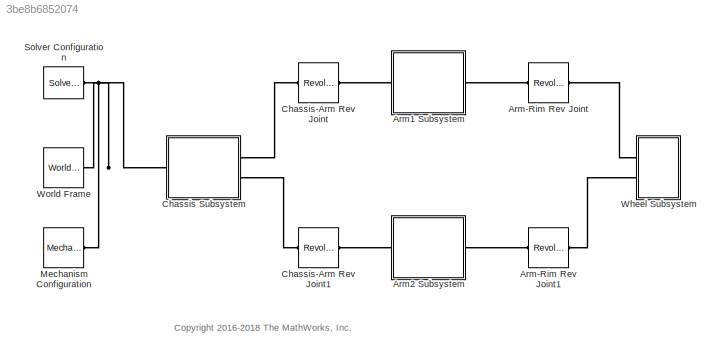
MODEL slx_3be8b6852074
KIND model
CONFIG AbsTol = auto
CONFIG EnableMultiTasking = on
CONFIG FixedStep = auto
CONFIG MaxStep = auto
CONFIG MinStep = auto
CONFIG PreLoadFcn = susp_sys_params
CONFIG RelTol = 1e-3
CONFIG SampleTimeConstraint = Unconstrained
CONFIG Solver = ode45
CONFIG SolverName = ode45
CONFIG StartTime = 0.0
CONFIG StopTime = 10.0
BLOCK [Reference] Arm-Rim Rev Joint  REF=sm_lib/Joints/Revolute Joint
  Ports = [0, 0, 0, 0, 0, 1, 1]
  SourceBlock = sm_lib/Joints/Revolute Joint
  SourceProductBaseCode = MS
  SourceProductName = Simscape Multibody
  SourceType = Revolute Joint
BLOCK [Reference] Arm-Rim Rev Joint1  REF=sm_lib/Joints/Revolute Joint
  Ports = [0, 0, 0, 0, 0, 1, 1]
  SourceBlock = sm_lib/Joints/Revolute Joint
  SourceProductBaseCode = MS
  SourceProductName = Simscape Multibody
  SourceType = Revolute Joint
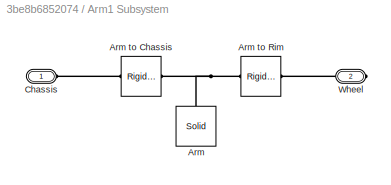
BLOCK [SubSystem] Arm1 Subsystem
  Ports = [0, 0, 0, 0, 0, 1, 1]
  RequestExecContextInheritance = off
  Variant = off
BLOCK [Reference] Arm1 Subsystem/Arm  REF=sm_lib/Body Elements/Solid
  Ports = [0, 0, 0, 0, 0, 0, 1]
  SourceBlock = sm_lib/Body Elements/Solid
  SourceProductBaseCode = MS
  SourceProductName = Simscape Multibody
  SourceType = Solid
BLOCK [Reference] Arm1 Subsystem/Arm to Chassis  REF=sm_lib/Frames and
Transforms/Rigid
Transform
  Ports = [0, 0, 0, 0, 0, 1, 1]
  SourceBlock = sm_lib/Frames and\nTransforms/Rigid\nTransform
  SourceProductBaseCode = MS
  SourceProductName = Simscape Multibody
  SourceType = Rigid\nTransform
BLOCK [Reference] Arm1 Subsystem/Arm to Rim  REF=sm_lib/Frames and
Transforms/Rigid
Transform
  Ports = [0, 0, 0, 0, 0, 1, 1]
  SourceBlock = sm_lib/Frames and\nTransforms/Rigid\nTransform
  SourceProductBaseCode = MS
  SourceProductName = Simscape Multibody
  SourceType = Rigid\nTransform
BLOCK [PMIOPort] Arm1 Subsystem/Chassis
  Port = 1
  Side = Left
BLOCK [PMIOPort] Arm1 Subsystem/Wheel
  Port = 2
  Side = Right
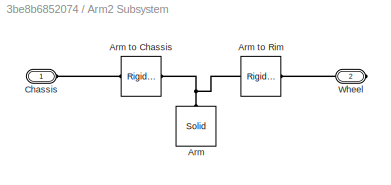
BLOCK [SubSystem] Arm2 Subsystem
  Ports = [0, 0, 0, 0, 0, 1, 1]
  RequestExecContextInheritance = off
  Variant = off
BLOCK [Reference] Arm2 Subsystem/Arm  REF=sm_lib/Body Elements/Solid
  Ports = [0, 0, 0, 0, 0, 0, 1]
  SourceBlock = sm_lib/Body Elements/Solid
  SourceProductBaseCode = MS
  SourceProductName = Simscape Multibody
  SourceType = Solid
BLOCK [Reference] Arm2 Subsystem/Arm to Chassis  REF=sm_lib/Frames and
Transforms/Rigid
Transform
  Ports = [0, 0, 0, 0, 0, 1, 1]
  SourceBlock = sm_lib/Frames and\nTransforms/Rigid\nTransform
  SourceProductBaseCode = MS
  SourceProductName = Simscape Multibody
  SourceType = Rigid\nTransform
BLOCK [Reference] Arm2 Subsystem/Arm to Rim  REF=sm_lib/Frames and
Transforms/Rigid
Transform
  Ports = [0, 0, 0, 0, 0, 1, 1]
  SourceBlock = sm_lib/Frames and\nTransforms/Rigid\nTransform
  SourceProductBaseCode = MS
  SourceProductName = Simscape Multibody
  SourceType = Rigid\nTransform
BLOCK [PMIOPort] Arm2 Subsystem/Chassis
  Port = 1
  Side = Left
BLOCK [PMIOPort] Arm2 Subsystem/Wheel
  Port = 2
  Side = Right
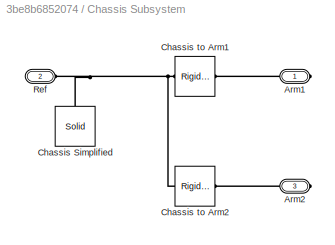
BLOCK [SubSystem] Chassis Subsystem
  Ports = [0, 0, 0, 0, 0, 1, 2]
  RequestExecContextInheritance = off
  Variant = off
BLOCK [PMIOPort] Chassis Subsystem/Arm1
  Port = 1
  Side = Right
BLOCK [PMIOPort] Chassis Subsystem/Arm2
  Port = 3
  Side = Right
BLOCK [Reference] Chassis Subsystem/Chassis Simplified  REF=sm_lib/Body Elements/Solid
  Ports = [0, 0, 0, 0, 0, 0, 1]
  SourceBlock = sm_lib/Body Elements/Solid
  SourceProductBaseCode = MS
  SourceProductName = Simscape Multibody
  SourceType = Solid
BLOCK [Reference] Chassis Subsystem/Chassis to Arm1  REF=sm_lib/Frames and
Transforms/Rigid
Transform
  Ports = [0, 0, 0, 0, 0, 1, 1]
  SourceBlock = sm_lib/Frames and\nTransforms/Rigid\nTransform
  SourceProductBaseCode = MS
  SourceProductName = Simscape Multibody
  SourceType = Rigid\nTransform
BLOCK [Reference] Chassis Subsystem/Chassis to Arm2  REF=sm_lib/Frames and
Transforms/Rigid
Transform
  Ports = [0, 0, 0, 0, 0, 1, 1]
  SourceBlock = sm_lib/Frames and\nTransforms/Rigid\nTransform
  SourceProductBaseCode = MS
  SourceProductName = Simscape Multibody
  SourceType = Rigid\nTransform
BLOCK [PMIOPort] Chassis Subsystem/Ref
  Port = 2
  Side = Left
BLOCK [Reference] Chassis-Arm Rev Joint  REF=sm_lib/Joints/Revolute Joint
  Ports = [0, 0, 0, 0, 0, 1, 1]
  SourceBlock = sm_lib/Joints/Revolute Joint
  SourceProductBaseCode = MS
  SourceProductName = Simscape Multibody
  SourceType = Revolute Joint
BLOCK [Reference] Chassis-Arm Rev Joint1  REF=sm_lib/Joints/Revolute Joint
  Ports = [0, 0, 0, 0, 0, 1, 1]
  SourceBlock = sm_lib/Joints/Revolute Joint
  SourceProductBaseCode = MS
  SourceProductName = Simscape Multibody
  SourceType = Revolute Joint
BLOCK [Reference] Mechanism Configuration  REF=sm_lib/Utilities/Mechanism
Configuration
  Ports = [0, 0, 0, 0, 0, 0, 1]
  SourceBlock = sm_lib/Utilities/Mechanism\nConfiguration
  SourceProductBaseCode = MS
  SourceProductName = Simscape Multibody
  SourceType = Mechanism\nConfiguration
BLOCK [Reference] Solver Configuration  REF=nesl_utility/Solver
Configuration
  Ports = [0, 0, 0, 0, 0, 0, 1]
  SourceBlock = nesl_utility/Solver\nConfiguration
  SourceProductBaseCode = SS
  SourceProductName = Simscape
  SourceType = Solver\nConfiguration
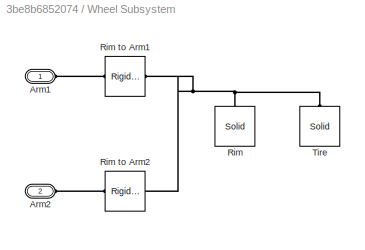
BLOCK [SubSystem] Wheel Subsystem
  Ports = [0, 0, 0, 0, 0, 2]
  RequestExecContextInheritance = off
  Variant = off
BLOCK [PMIOPort] Wheel Subsystem/Arm1
  Port = 1
  Side = Left
BLOCK [PMIOPort] Wheel Subsystem/Arm2
  Port = 2
  Side = Left
BLOCK [Reference] Wheel Subsystem/Rim  REF=sm_lib/Body Elements/Solid
  Ports = [0, 0, 0, 0, 0, 0, 1]
  SourceBlock = sm_lib/Body Elements/Solid
  SourceProductBaseCode = MS
  SourceProductName = Simscape Multibody
  SourceType = Solid
BLOCK [Reference] Wheel Subsystem/Rim to Arm1  REF=sm_lib/Frames and
Transforms/Rigid
Transform
  Ports = [0, 0, 0, 0, 0, 1, 1]
  SourceBlock = sm_lib/Frames and\nTransforms/Rigid\nTransform
  SourceProductBaseCode = MS
  SourceProductName = Simscape Multibody
  SourceType = Rigid\nTransform
BLOCK [Reference] Wheel Subsystem/Rim to Arm2  REF=sm_lib/Frames and
Transforms/Rigid
Transform
  Ports = [0, 0, 0, 0, 0, 1, 1]
  SourceBlock = sm_lib/Frames and\nTransforms/Rigid\nTransform
  SourceProductBaseCode = MS
  SourceProductName = Simscape Multibody
  SourceType = Rigid\nTransform
BLOCK [Reference] Wheel Subsystem/Tire  REF=sm_lib/Body Elements/Solid
  Ports = [0, 0, 0, 0, 0, 0, 1]
  SourceBlock = sm_lib/Body Elements/Solid
  SourceProductBaseCode = MS
  SourceProductName = Simscape Multibody
  SourceType = Solid
BLOCK [Reference] World Frame  REF=sm_lib/Frames and
Transforms/World Frame
  Ports = [0, 0, 0, 0, 0, 0, 1]
  SourceBlock = sm_lib/Frames and\nTransforms/World Frame
  SourceProductBaseCode = MS
  SourceProductName = Simscape Multibody
  SourceType = World Frame
ANNOTATION (root): <copyright redacted>
PLINE Arm-Rim Rev Joint1:LConn1 -- Arm2 Subsystem:RConn1
PLINE Arm-Rim Rev Joint1:RConn1 -- Wheel Subsystem:LConn2
PLINE Arm-Rim Rev Joint:LConn1 -- Arm1 Subsystem:RConn1
PLINE Arm-Rim Rev Joint:RConn1 -- Wheel Subsystem:LConn1
PNET net1: Arm1 Subsystem/Arm to Chassis:LConn1 -- Arm1 Subsystem/Arm to Rim:LConn1 -- Arm1 Subsystem/Arm:RConn1
PLINE Arm1 Subsystem/Arm to Chassis:RConn1 -- Arm1 Subsystem/Chassis:RConn1
PLINE Arm1 Subsystem/Arm to Rim:RConn1 -- Arm1 Subsystem/Wheel:RConn1
PLINE Arm1 Subsystem:LConn1 -- Chassis-Arm Rev Joint:RConn1
PNET net2: Arm2 Subsystem/Arm to Chassis:LConn1 -- Arm2 Subsystem/Arm to Rim:LConn1 -- Arm2 Subsystem/Arm:RConn1
PLINE Arm2 Subsystem/Arm to Chassis:RConn1 -- Arm2 Subsystem/Chassis:RConn1
PLINE Arm2 Subsystem/Arm to Rim:RConn1 -- Arm2 Subsystem/Wheel:RConn1
PLINE Arm2 Subsystem:LConn1 -- Chassis-Arm Rev Joint1:RConn1
PLINE Chassis Subsystem/Arm1:RConn1 -- Chassis Subsystem/Chassis to Arm1:RConn1
PLINE Chassis Subsystem/Arm2:RConn1 -- Chassis Subsystem/Chassis to Arm2:RConn1
PNET net3: Chassis Subsystem/Chassis Simplified:RConn1 -- Chassis Subsystem/Chassis to Arm1:LConn1 -- Chassis Subsystem/Chassis to Arm2:LConn1 -- Chassis Subsystem/Ref:RConn1
PNET net4: Chassis Subsystem:LConn1 -- Mechanism Configuration:RConn1 -- Solver Configuration:RConn1 -- World Frame:RConn1
PLINE Chassis Subsystem:RConn1 -- Chassis-Arm Rev Joint:LConn1
PLINE Chassis Subsystem:RConn2 -- Chassis-Arm Rev Joint1:LConn1
PLINE Wheel Subsystem/Arm1:RConn1 -- Wheel Subsystem/Rim to Arm1:RConn1
PLINE Wheel Subsystem/Arm2:RConn1 -- Wheel Subsystem/Rim to Arm2:RConn1
PNET net5: Wheel Subsystem/Rim to Arm1:LConn1 -- Wheel Subsystem/Rim to Arm2:LConn1 -- Wheel Subsystem/Rim:RConn1 -- Wheel Subsystem/Tire:RConn1
note: PNET lines group multi-terminal physical nets as a canonical sorted terminal list (undirected conserving connections); 2-terminal nets keep the pairwise PLINE form
